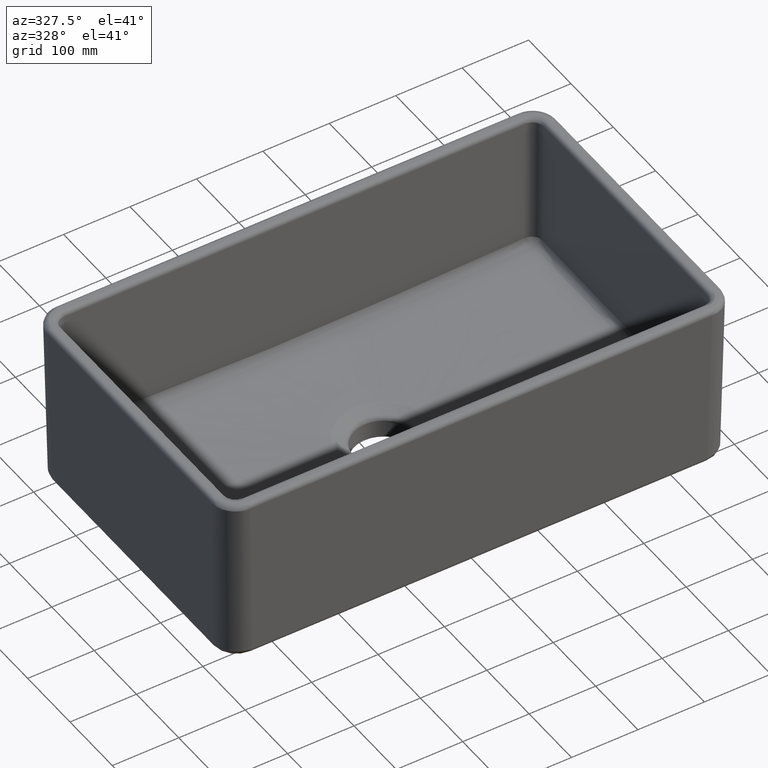
[diagram: clean part render]
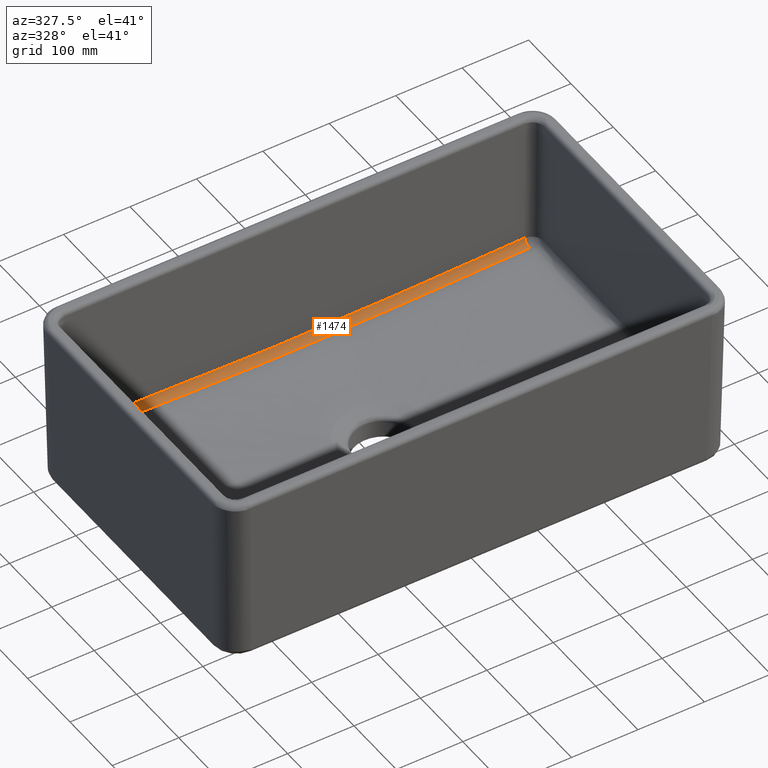
[diagram: same view with one face highlighted and labeled with its STEP entity id]
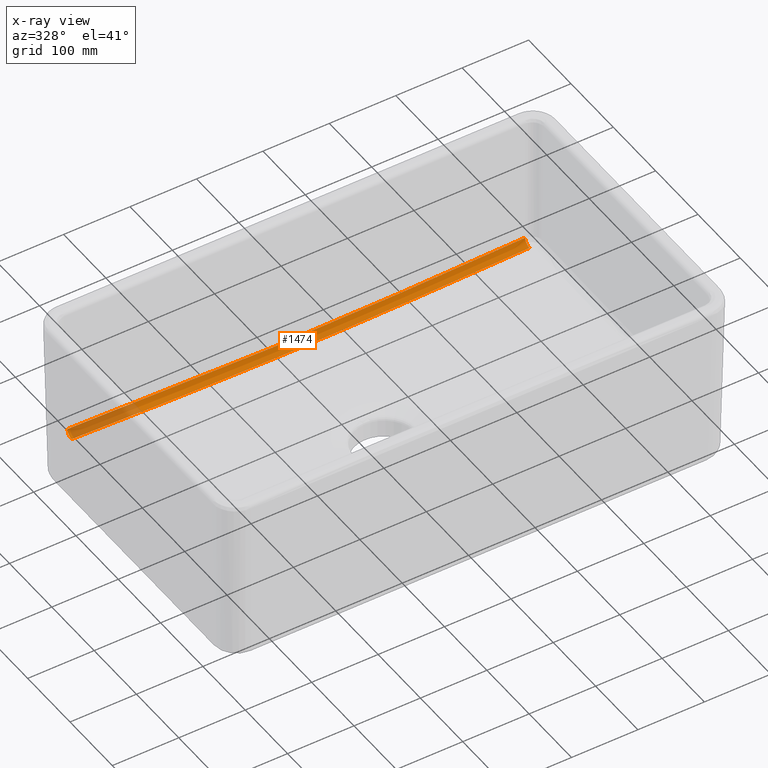
[diagram: x-ray of the same camera — body ghosted, the highlighted face saturated]
A machine part, auxiliary view. The second image highlights one B-rep face of the part: STEP entity #1474.
The next image is the same camera in x-ray: the body ghosted, the highlighted face saturated — about 14% of this face is hidden behind the body in this view.
In plain terms, the highlighted face is a freeform B-spline surface patch.
Its self-contained STEP definition (entity closure, byte-faithful):
#224=(
BOUNDED_SURFACE()
B_SPLINE_SURFACE(3,2,((#14887,#14888,#14889),(#14890,#14891,#14892),(#14893,
#14894,#14895),(#14896,#14897,#14898),(#14899,#14900,#14901),(#14902,#14903,
#14904),(#14905,#14906,#14907),(#14908,#14909,#14910),(#14911,#14912,#14913),
(#14914,#14915,#14916)),.UNSPECIFIED.,.F.,.F.,.F.)
B_SPLINE_SURFACE_WITH_KNOTS((4,2,2,2,4),(3,3),(0.,0.25,0.5,0.75,1.),(0.,
1.),.UNSPECIFIED.)
GEOMETRIC_REPRESENTATION_ITEM()
RATIONAL_B_SPLINE_SURFACE(((1.,0.719299813680609,1.),(1.,0.720034433328824,
1.),(1.,0.721088735367884,1.),(1.,0.723712751008495,1.),(1.,0.72537759621818,
1.),(1.,0.72537759621818,1.),(1.,0.723712619373625,1.),(1.,0.721088657084345,
1.),(1.,0.720034427696855,1.),(1.,0.719299813680603,1.)))
REPRESENTATION_ITEM('')
SURFACE()
);
#547=B_SPLINE_CURVE_WITH_KNOTS('',3,(#9449,#9450,#9451,#9452,#9453,#9454,
#9455,#9456,#9457,#9458),.UNSPECIFIED.,.F.,.F.,(4,2,2,2,4),(0.,0.25,0.5,
0.75,1.),.UNSPECIFIED.);
#729=B_SPLINE_CURVE_WITH_KNOTS('',3,(#14875,#14876,#14877,#14878,#14879,
#14880,#14881,#14882,#14883,#14884),.UNSPECIFIED.,.F.,.F.,(4,2,2,2,4),(0.,
0.25,0.5,0.75,1.),.UNSPECIFIED.);
#1189=CIRCLE('',#5979,10.0502512562814);
#1190=CIRCLE('',#5980,10.0502512562814);
#1474=ADVANCED_FACE('',(#1841),#224,.T.);
#1841=FACE_OUTER_BOUND('',#2197,.T.);
#2197=EDGE_LOOP('',(#3324,#3325,#3326,#3327));
#3324=ORIENTED_EDGE('',*,*,#5286,.T.);
#3325=ORIENTED_EDGE('',*,*,#5288,.F.);
#3326=ORIENTED_EDGE('',*,*,#5289,.F.);
#3327=ORIENTED_EDGE('',*,*,#4981,.F.);
#4379=VERTEX_POINT('',#9448);
#4380=VERTEX_POINT('',#9459);
#4543=VERTEX_POINT('',#14830);
#4544=VERTEX_POINT('',#14885);
#4981=EDGE_CURVE('',#4379,#4380,#547,.T.);
#5286=EDGE_CURVE('',#4379,#4543,#1189,.T.);
#5288=EDGE_CURVE('',#4544,#4543,#729,.T.);
#5289=EDGE_CURVE('',#4380,#4544,#1190,.T.);
#5979=AXIS2_PLACEMENT_3D('',#14829,#6530,#6531);
#5980=AXIS2_PLACEMENT_3D('',#14886,#6532,#6533);
#6530=DIRECTION('',(0.999540700663202,0.000528893648868227,0.0303002968504122));
#6531=DIRECTION('',(-0.0303003010883396,0.,0.999540840463238));
#6532=DIRECTION('',(0.999540700663202,-0.000528893648851537,-0.0303002968504119));
#6533=DIRECTION('',(0.0303003010883396,0.,0.999540840463238));
#9448=CARTESIAN_POINT('',(344.649760142003,197.383100405726,11.9391441101525));
#9449=CARTESIAN_POINT('',(344.649760142003,197.383100405726,11.9391441101525));
#9450=CARTESIAN_POINT('',(287.220905540125,197.374589920768,10.1986128673881));
#9451=CARTESIAN_POINT('',(229.789820031049,197.375559275559,8.53908874048444));
#9452=CARTESIAN_POINT('',(114.909046824914,197.405744566375,5.90092811074268));
#9453=CARTESIAN_POINT('',(57.4636109857593,197.437854930747,4.96349346211508));
#9454=CARTESIAN_POINT('',(-57.45169373383,197.43785898475,4.96337246191675));
#9455=CARTESIAN_POINT('',(-114.903764732955,197.405746602845,5.90082669667406));
#9456=CARTESIAN_POINT('',(-229.785957325156,197.375559641966,8.53898015192908));
#9457=CARTESIAN_POINT('',(-287.219402195894,197.374589697984,10.1985673046197));
#9458=CARTESIAN_POINT('',(-344.649760142003,197.383100405726,11.9391441101525));
#9459=CARTESIAN_POINT('',(-344.649760142003,197.383100405726,11.9391441101525));
#14829=CARTESIAN_POINT('',(344.345372473083,197.208775659955,21.9832722129003));
#14830=CARTESIAN_POINT('',(344.345372473083,207.257496214291,21.8078711431788));
#14875=CARTESIAN_POINT('',(-344.345372473083,207.257496214291,21.8078711431788));
#14876=CARTESIAN_POINT('',(-286.965728801055,207.227134540082,20.0684519926834));
#14877=CARTESIAN_POINT('',(-229.583010801299,207.198180724077,18.4096889846989));
#14878=CARTESIAN_POINT('',(-114.802290981517,207.152125360166,15.7711789533703));
#14879=CARTESIAN_POINT('',(-57.400960431512,207.135733618201,14.8320966851156));
#14880=CARTESIAN_POINT('',(57.4129115870106,207.135735741949,14.8322183545812));
#14881=CARTESIAN_POINT('',(114.807598413761,207.152127141846,15.77128102573));
#14882=CARTESIAN_POINT('',(229.586885738419,207.198182626819,18.4097979927083));
#14883=CARTESIAN_POINT('',(286.967238565812,207.227135338953,20.0684977600247));
#14884=CARTESIAN_POINT('',(344.345372473083,207.257496214291,21.8078711431788));
#14885=CARTESIAN_POINT('',(-344.345372473083,207.257496214291,21.8078711431788));
#14886=CARTESIAN_POINT('',(-344.345372473083,197.208775659955,21.9832722129003));
#14887=CARTESIAN_POINT('',(-344.649760142003,197.383100405726,11.9391441101525));
#14888=CARTESIAN_POINT('',(-344.639528102024,207.088171663784,12.107274141518));
#14889=CARTESIAN_POINT('',(-344.345372473083,207.257496214291,21.8078711431788));
#14890=CARTESIAN_POINT('',(-287.257243969494,197.374595315147,10.199714198441));
#14891=CARTESIAN_POINT('',(-287.305429005677,207.058202714043,10.3903521310888));
#14892=CARTESIAN_POINT('',(-286.966202078563,207.227134790525,20.068466340566));
#14893=CARTESIAN_POINT('',(-229.857395991027,197.375552022945,8.5409624668317));
#14894=CARTESIAN_POINT('',(-229.951202294677,207.029752916826,8.76046644860028));
#14895=CARTESIAN_POINT('',(-229.583010798073,207.198180724075,18.4096889845963));
#14896=CARTESIAN_POINT('',(-114.989470455111,197.405712945147,5.90245351115688));
#14897=CARTESIAN_POINT('',(-115.084944926533,206.984939032911,6.19308060119394));
#14898=CARTESIAN_POINT('',(-114.802290984743,207.152125360168,15.7711789534728));
#14899=CARTESIAN_POINT('',(-57.5031422798967,197.437858994862,4.96337212733198));
#14900=CARTESIAN_POINT('',(-57.4980595937192,206.969285827667,5.29630926663283));
#14901=CARTESIAN_POINT('',(-57.4009604309902,207.135733618199,14.8320966850235));
#14902=CARTESIAN_POINT('',(57.515114710147,197.437854920632,4.96349379675808));
#14903=CARTESIAN_POINT('',(57.5100309657298,206.969287856017,5.29642524126901));
#14904=CARTESIAN_POINT('',(57.4129115864891,207.135735741951,14.8322183546734));
#14905=CARTESIAN_POINT('',(114.994783429842,197.405710897402,5.90255558342942));
#14906=CARTESIAN_POINT('',(115.090254324558,206.984940750526,6.19317908110182));
#14907=CARTESIAN_POINT('',(114.807598417061,207.152127141847,15.7712810257746));
#14908=CARTESIAN_POINT('',(229.86127236193,197.375551657892,8.54107147484227));
#14909=CARTESIAN_POINT('',(229.955075258475,207.029754782931,8.760573279565));
#14910=CARTESIAN_POINT('',(229.58688573512,207.198182626818,18.4097979926636));
#14911=CARTESIAN_POINT('',(287.258318347931,197.374595479145,10.1997467603651));
#14912=CARTESIAN_POINT('',(287.306501850076,207.058203261285,10.3903842783719));
#14913=CARTESIAN_POINT('',(286.967276426174,207.227135359001,20.068498908563));
#14914=CARTESIAN_POINT('',(344.649760142003,197.383100405726,11.9391441101525));
#14915=CARTESIAN_POINT('',(344.639528102024,207.088171663784,12.1072741415179));
#14916=CARTESIAN_POINT('',(344.345372473082,207.257496214291,21.8078711431788));